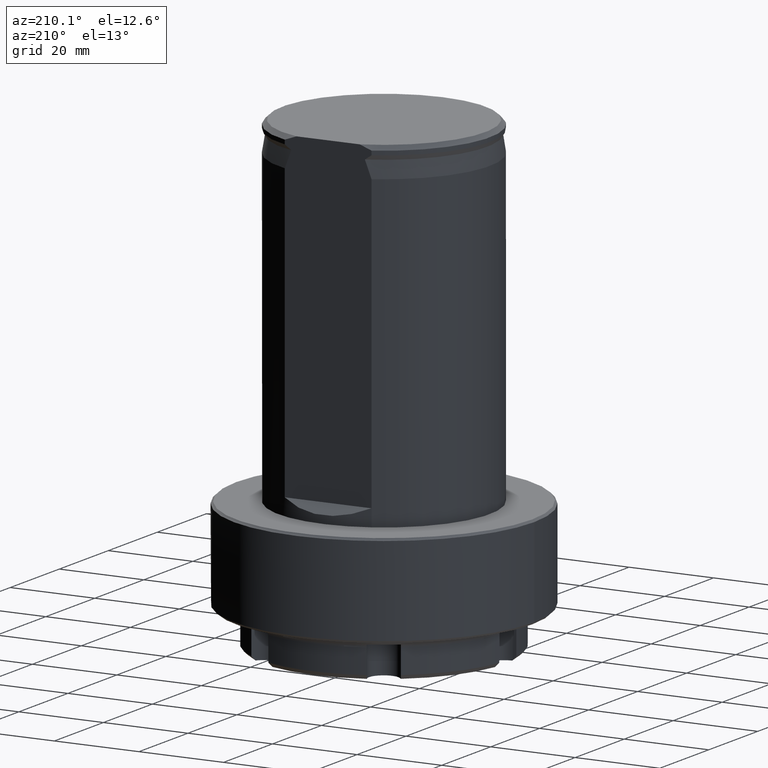
[diagram: clean part render]
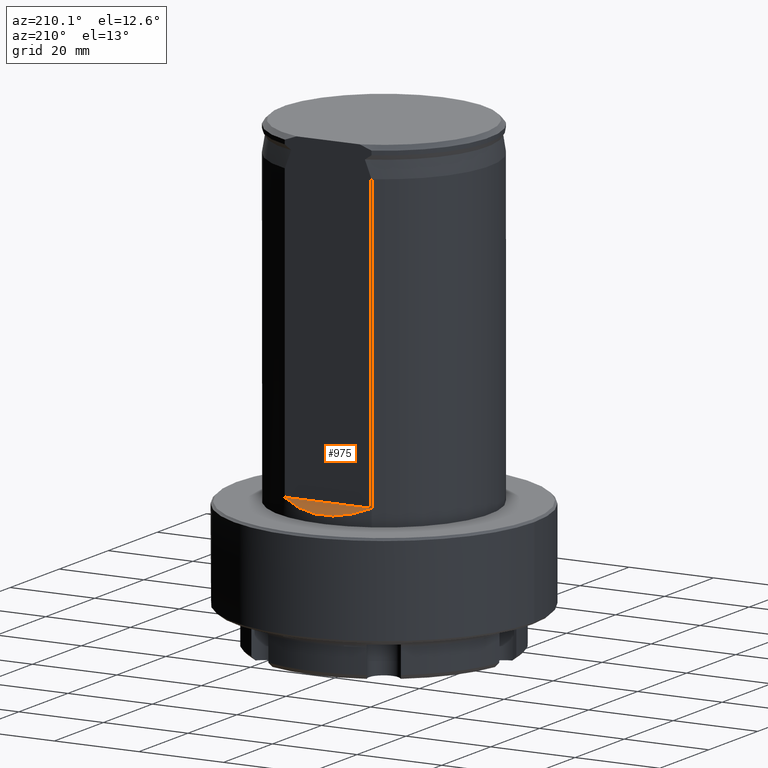
[diagram: same view with one face highlighted and labeled with its STEP entity id]
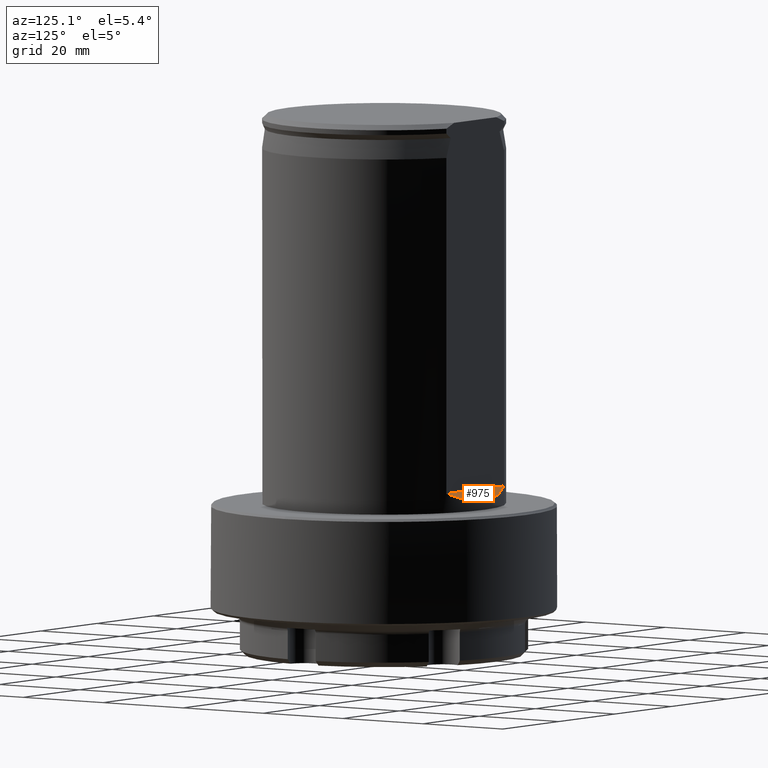
[diagram: same view with one face highlighted and labeled with its STEP entity id]
A machine part, auxiliary view. The second image highlights one B-rep face of the part: STEP entity #975.
A second angle (auxiliary view) of the same face is appended — the face is thin or edge-on in the first view.
In plain terms, the highlighted planar face has unit normal (-0, 0.7071, 0.7071).
Its self-contained STEP definition (entity closure, byte-faithful):
#26=ELLIPSE('',#1059,35.3553390593274,25.);
#105=LINE('',#1521,#147);
#147=VECTOR('',#1201,1000.);
#216=ORIENTED_EDGE('',*,*,#495,.F.);
#217=ORIENTED_EDGE('',*,*,#492,.T.);
#492=EDGE_CURVE('',#634,#635,#105,.T.);
#495=EDGE_CURVE('',#634,#635,#26,.F.);
#634=VERTEX_POINT('',#1522);
#635=VERTEX_POINT('',#1523);
#789=EDGE_LOOP('',(#216,#217));
#869=FACE_BOUND('',#789,.T.);
#945=PLANE('',#1058);
#975=ADVANCED_FACE('',(#869),#945,.T.);
#1058=AXIS2_PLACEMENT_3D('',#1526,#1204,#1205);
#1059=AXIS2_PLACEMENT_3D('',#1527,#1206,#1207);
#1201=DIRECTION('',(1.,0.,0.));
#1204=DIRECTION('',(-7.85046229341888E-17,0.707106781186548,0.707106781186547));
#1205=DIRECTION('',(-7.85046229341887E-17,0.707106781186547,-0.707106781186548));
#1206=DIRECTION('',(-7.85046229341888E-17,0.707106781186548,0.707106781186547));
#1207=DIRECTION('',(-7.85046229341887E-17,0.707106781186547,-0.707106781186548));
#1521=CARTESIAN_POINT('',(-76.8773141870897,22.8,4.));
#1522=CARTESIAN_POINT('',(-10.2547549946354,22.8,4.));
#1523=CARTESIAN_POINT('',(10.2547549946353,22.8,4.));
#1526=CARTESIAN_POINT('',(-76.8773141870897,25.,1.80000000000001));
#1527=CARTESIAN_POINT('',(-6.93889390390723E-15,-1.8535173396117E-14,26.8));